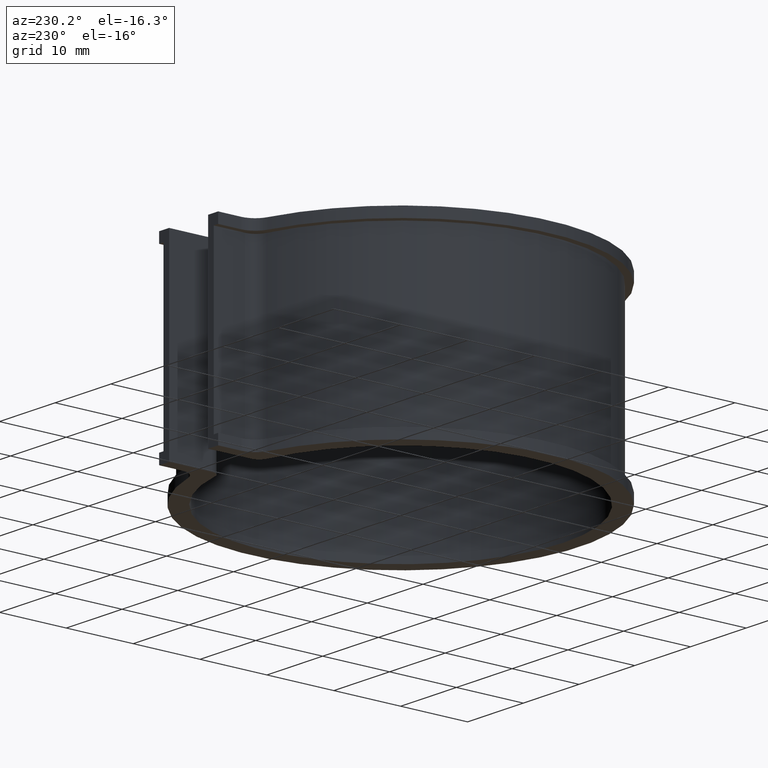
[diagram: clean part render]
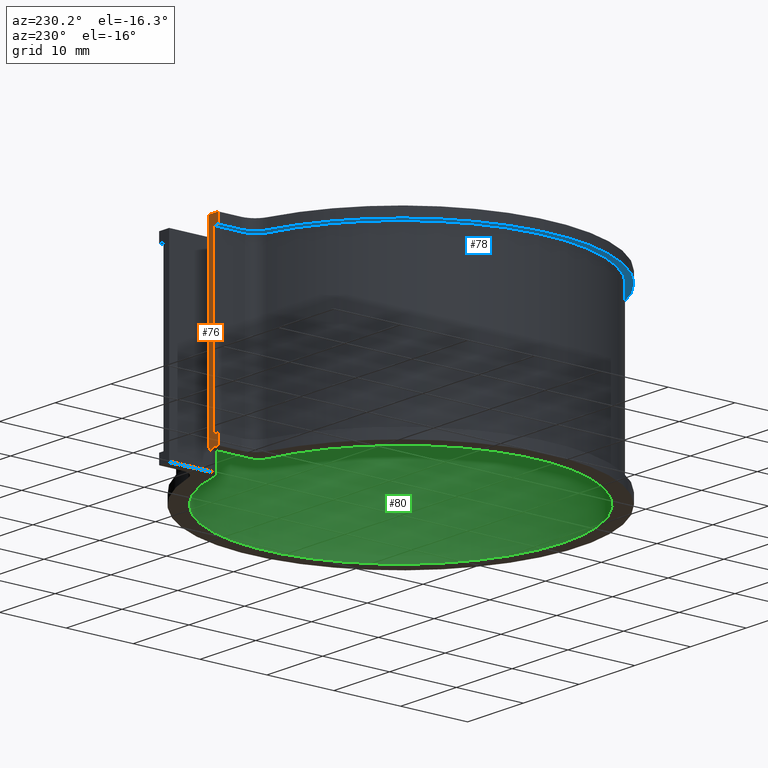
[diagram: same view with three faces highlighted in distinct colors, each labeled with its STEP entity id]
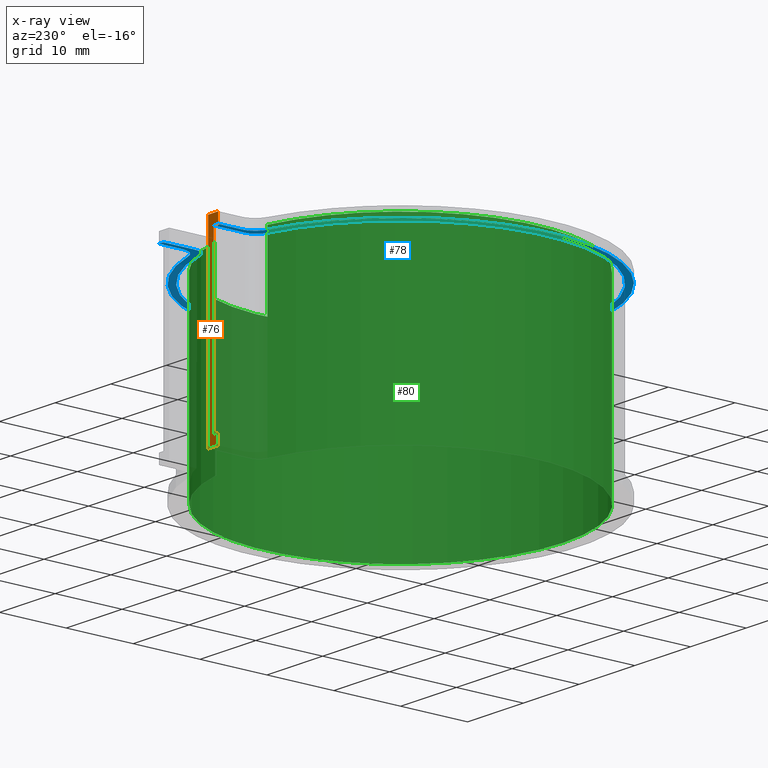
[diagram: x-ray of the same camera — body ghosted, the three highlighted faces saturated]
A machine part, auxiliary view with three faces highlighted in distinct colors.
The next image is the same camera in x-ray (body ghosted, the three faces saturated) — at least one of them is partly hidden behind the body in this view.
Their STEP definitions:

[orange] entity #76 — the highlighted planar face has unit normal (0, 1, 0).
#76 = ADVANCED_FACE( '', ( #104 ), #105, .T. );
#104 = FACE_OUTER_BOUND( '', #156, .T. );
#105 = PLANE( '', #157 );
#156 = EDGE_LOOP( '', ( #213, #214, #215, #216, #217, #218, #219, #220 ) );
#157 = AXIS2_PLACEMENT_3D( '', #221, #222, #223 );
#213 = ORIENTED_EDGE( '', *, *, #432, .T. );
#214 = ORIENTED_EDGE( '', *, *, #433, .T. );
#215 = ORIENTED_EDGE( '', *, *, #434, .F. );
#216 = ORIENTED_EDGE( '', *, *, #435, .F. );
#217 = ORIENTED_EDGE( '', *, *, #436, .F. );
#218 = ORIENTED_EDGE( '', *, *, #437, .T. );
#219 = ORIENTED_EDGE( '', *, *, #438, .T. );
#220 = ORIENTED_EDGE( '', *, *, #439, .F. );
#221 = CARTESIAN_POINT( '', ( -3.50000000000001, 31.7045271556075, -25.0000000000000 ) );
#222 = DIRECTION( '', ( 2.46519032881566E-032, 1.00000000000000, 0.000000000000000 ) );
#223 = DIRECTION( '', ( 1.00000000000000, -2.46519032881566E-032, 0.000000000000000 ) );
#432 = EDGE_CURVE( '', #508, #509, #510, .T. );
#433 = EDGE_CURVE( '', #509, #511, #512, .T. );
#434 = EDGE_CURVE( '', #513, #511, #514, .T. );
#435 = EDGE_CURVE( '', #515, #513, #516, .T. );
#436 = EDGE_CURVE( '', #517, #515, #518, .T. );
#437 = EDGE_CURVE( '', #517, #519, #520, .T. );
#438 = EDGE_CURVE( '', #519, #521, #522, .T. );
#439 = EDGE_CURVE( '', #508, #521, #523, .T. );
#508 = VERTEX_POINT( '', #632 );
#509 = VERTEX_POINT( '', #633 );
#510 = LINE( '', #634, #635 );
#511 = VERTEX_POINT( '', #636 );
#512 = LINE( '', #637, #638 );
#513 = VERTEX_POINT( '', #639 );
#514 = LINE( '', #640, #641 );
#515 = VERTEX_POINT( '', #642 );
#516 = LINE( '', #643, #644 );
#517 = VERTEX_POINT( '', #645 );
#518 = LINE( '', #646, #647 );
#519 = VERTEX_POINT( '', #648 );
#520 = LINE( '', #649, #650 );
#521 = VERTEX_POINT( '', #651 );
#522 = LINE( '', #652, #653 );
#523 = LINE( '', #654, #655 );
#632 = CARTESIAN_POINT( '', ( -4.50000000000001, 31.7045271556075, -25.0000000000000 ) );
#633 = CARTESIAN_POINT( '', ( -4.50000000000002, 31.7045271556075, 0.000000000000000 ) );
#634 = CARTESIAN_POINT( '', ( -4.50000000000002, 31.7045271556075, -25.0000000000000 ) );
#635 = VECTOR( '', #792, 1000.00000000000 );
#636 = CARTESIAN_POINT( '', ( -5.30000000000000, 31.7045271556075, 0.000000000000000 ) );
#637 = CARTESIAN_POINT( '', ( -3.50000000000000, 31.7045271556075, 0.000000000000000 ) );
#638 = VECTOR( '', #793, 1000.00000000000 );
#639 = CARTESIAN_POINT( '', ( -5.30000000000000, 31.7045271556075, 1.50000000000000 ) );
#640 = CARTESIAN_POINT( '', ( -5.30000000000000, 31.7045271556075, 1.50000000000000 ) );
#641 = VECTOR( '', #794, 1000.00000000000 );
#642 = CARTESIAN_POINT( '', ( -3.50000000000000, 31.7045271556075, 1.50000000000000 ) );
#643 = CARTESIAN_POINT( '', ( -3.50000000000000, 31.7045271556075, 1.50000000000000 ) );
#644 = VECTOR( '', #795, 1000.00000000000 );
#645 = CARTESIAN_POINT( '', ( -3.50000000000000, 31.7045271556075, -26.5000000000000 ) );
#646 = CARTESIAN_POINT( '', ( -3.50000000000000, 31.7045271556076, -25.0000000000000 ) );
#647 = VECTOR( '', #796, 1000.00000000000 );
#648 = CARTESIAN_POINT( '', ( -5.30000000000000, 31.7045271556075, -26.5000000000000 ) );
#649 = CARTESIAN_POINT( '', ( -3.50000000000000, 31.7045271556075, -26.5000000000000 ) );
#650 = VECTOR( '', #797, 1000.00000000000 );
#651 = CARTESIAN_POINT( '', ( -5.30000000000000, 31.7045271556075, -25.0000000000000 ) );
#652 = CARTESIAN_POINT( '', ( -5.30000000000000, 31.7045271556075, -26.5000000000000 ) );
#653 = VECTOR( '', #798, 1000.00000000000 );
#654 = CARTESIAN_POINT( '', ( -3.50000000000000, 31.7045271556075, -25.0000000000000 ) );
#655 = VECTOR( '', #799, 1000.00000000000 );
#792 = DIRECTION( '', ( 0.000000000000000, 0.000000000000000, 1.00000000000000 ) );
#793 = DIRECTION( '', ( -1.00000000000000, 0.000000000000000, 0.000000000000000 ) );
#794 = DIRECTION( '', ( 0.000000000000000, 0.000000000000000, -1.00000000000000 ) );
#795 = DIRECTION( '', ( -1.00000000000000, 0.000000000000000, 0.000000000000000 ) );
#796 = DIRECTION( '', ( 0.000000000000000, 0.000000000000000, 1.00000000000000 ) );
#797 = DIRECTION( '', ( -1.00000000000000, 0.000000000000000, 0.000000000000000 ) );
#798 = DIRECTION( '', ( 0.000000000000000, 0.000000000000000, 1.00000000000000 ) );
#799 = DIRECTION( '', ( -1.00000000000000, 0.000000000000000, 0.000000000000000 ) );

[blue] entity #78 — the highlighted planar face has unit normal (0, 0, 1).
#78 = ADVANCED_FACE( '', ( #108 ), #109, .F. );
#108 = FACE_OUTER_BOUND( '', #160, .T. );
#109 = PLANE( '', #161 );
#160 = EDGE_LOOP( '', ( #231, #232, #233, #234, #235, #236, #237, #238, #239, #240, #241, #242 ) );
#161 = AXIS2_PLACEMENT_3D( '', #243, #244, #245 );
#231 = ORIENTED_EDGE( '', *, *, #443, .T. );
#232 = ORIENTED_EDGE( '', *, *, #444, .T. );
#233 = ORIENTED_EDGE( '', *, *, #445, .T. );
#234 = ORIENTED_EDGE( '', *, *, #446, .F. );
#235 = ORIENTED_EDGE( '', *, *, #447, .F. );
#236 = ORIENTED_EDGE( '', *, *, #448, .T. );
#237 = ORIENTED_EDGE( '', *, *, #449, .F. );
#238 = ORIENTED_EDGE( '', *, *, #450, .T. );
#239 = ORIENTED_EDGE( '', *, *, #440, .F. );
#240 = ORIENTED_EDGE( '', *, *, #433, .F. );
#241 = ORIENTED_EDGE( '', *, *, #451, .T. );
#242 = ORIENTED_EDGE( '', *, *, #452, .T. );
#243 = CARTESIAN_POINT( '', ( 0.000000000000000, 0.000000000000000, 0.000000000000000 ) );
#244 = DIRECTION( '', ( 0.000000000000000, 0.000000000000000, 1.00000000000000 ) );
#245 = DIRECTION( '', ( 0.000000000000000, 1.00000000000000, 0.000000000000000 ) );
#433 = EDGE_CURVE( '', #509, #511, #512, .T. );
#440 = EDGE_CURVE( '', #511, #524, #525, .T. );
#443 = EDGE_CURVE( '', #529, #530, #531, .T. );
#444 = EDGE_CURVE( '', #530, #532, #533, .F. );
#445 = EDGE_CURVE( '', #532, #534, #535, .T. );
#446 = EDGE_CURVE( '', #536, #534, #537, .T. );
#447 = EDGE_CURVE( '', #538, #536, #539, .T. );
#448 = EDGE_CURVE( '', #538, #540, #541, .T. );
#449 = EDGE_CURVE( '', #542, #540, #543, .T. );
#450 = EDGE_CURVE( '', #542, #524, #544, .T. );
#451 = EDGE_CURVE( '', #509, #545, #546, .T. );
#452 = EDGE_CURVE( '', #545, #529, #547, .F. );
#509 = VERTEX_POINT( '', #633 );
#511 = VERTEX_POINT( '', #636 );
#512 = LINE( '', #637, #638 );
#524 = VERTEX_POINT( '', #656 );
#525 = LINE( '', #657, #658 );
#529 = VERTEX_POINT( '', #664 );
#530 = VERTEX_POINT( '', #665 );
#531 = CIRCLE( '', #666, 25.8000000000000 );
#532 = VERTEX_POINT( '', #667 );
#533 = CIRCLE( '', #668, 2.00000000000000 );
#534 = VERTEX_POINT( '', #669 );
#535 = LINE( '', #670, #671 );
#536 = VERTEX_POINT( '', #672 );
#537 = LINE( '', #673, #674 );
#538 = VERTEX_POINT( '', #675 );
#539 = LINE( '', #676, #677 );
#540 = VERTEX_POINT( '', #678 );
#541 = CIRCLE( '', #679, 2.50000000000000 );
#542 = VERTEX_POINT( '', #680 );
#543 = CIRCLE( '', #681, 26.8000000000000 );
#544 = CIRCLE( '', #682, 2.50000000000000 );
#545 = VERTEX_POINT( '', #683 );
#546 = LINE( '', #684, #685 );
#547 = CIRCLE( '', #686, 2.00000000000000 );
#633 = CARTESIAN_POINT( '', ( -4.50000000000002, 31.7045271556075, 0.000000000000000 ) );
#636 = CARTESIAN_POINT( '', ( -5.30000000000000, 31.7045271556075, 0.000000000000000 ) );
#637 = CARTESIAN_POINT( '', ( -3.50000000000000, 31.7045271556075, 0.000000000000000 ) );
#638 = VECTOR( '', #793, 1000.00000000000 );
#656 = CARTESIAN_POINT( '', ( -5.30000000000000, 28.2426981713858, 0.000000000000000 ) );
#657 = CARTESIAN_POINT( '', ( -5.30000000000000, 31.7045271556075, 0.000000000000000 ) );
#658 = VECTOR( '', #800, 1000.00000000000 );
#664 = CARTESIAN_POINT( '', ( -6.03237410071942, 25.0848652120949, 0.000000000000000 ) );
#665 = CARTESIAN_POINT( '', ( 6.03237410071943, 25.0848652120949, 0.000000000000000 ) );
#666 = AXIS2_PLACEMENT_3D( '', #803, #804, #805 );
#667 = CARTESIAN_POINT( '', ( 4.50000000000000, 27.0294284068310, 0.000000000000000 ) );
#668 = AXIS2_PLACEMENT_3D( '', #806, #807, #808 );
#669 = CARTESIAN_POINT( '', ( 4.50000000000001, 31.7045271556075, 0.000000000000000 ) );
#670 = CARTESIAN_POINT( '', ( 4.50000000000000, 25.4045271556075, 0.000000000000000 ) );
#671 = VECTOR( '', #809, 1000.00000000000 );
#672 = CARTESIAN_POINT( '', ( 5.30000000000000, 31.7045271556076, 0.000000000000000 ) );
#673 = CARTESIAN_POINT( '', ( 5.30000000000003, 31.7045271556075, 0.000000000000000 ) );
#674 = VECTOR( '', #810, 1000.00000000000 );
#675 = CARTESIAN_POINT( '', ( 5.30000000000000, 28.2426981713858, 0.000000000000000 ) );
#676 = CARTESIAN_POINT( '', ( 5.30000000000000, 26.2707061191739, 0.000000000000000 ) );
#677 = VECTOR( '', #811, 1000.00000000000 );
#678 = CARTESIAN_POINT( '', ( 7.13447098976109, 25.8329116379911, 0.000000000000000 ) );
#679 = AXIS2_PLACEMENT_3D( '', #812, #813, #814 );
#680 = CARTESIAN_POINT( '', ( -7.13447098976109, 25.8329116379911, 0.000000000000000 ) );
#681 = AXIS2_PLACEMENT_3D( '', #815, #816, #817 );
#682 = AXIS2_PLACEMENT_3D( '', #818, #819, #820 );
#683 = CARTESIAN_POINT( '', ( -4.50000000000000, 27.0294284068310, 0.000000000000000 ) );
#684 = CARTESIAN_POINT( '', ( -4.50000000000000, 31.7045271556076, 0.000000000000000 ) );
#685 = VECTOR( '', #821, 1000.00000000000 );
#686 = AXIS2_PLACEMENT_3D( '', #822, #823, #824 );
#793 = DIRECTION( '', ( -1.00000000000000, 0.000000000000000, 0.000000000000000 ) );
#800 = DIRECTION( '', ( -6.12303176911189E-017, -1.00000000000000, 0.000000000000000 ) );
#803 = CARTESIAN_POINT( '', ( 2.60208521396521E-015, 1.38777878078145E-014, 0.000000000000000 ) );
#804 = DIRECTION( '', ( 0.000000000000000, 0.000000000000000, 1.00000000000000 ) );
#805 = DIRECTION( '', ( 1.00000000000000, -8.32667268468867E-017, 0.000000000000000 ) );
#806 = CARTESIAN_POINT( '', ( 6.50000000000001, 27.0294284068310, 0.000000000000000 ) );
#807 = DIRECTION( '', ( 0.000000000000000, 0.000000000000000, 1.00000000000000 ) );
#808 = DIRECTION( '', ( 1.00000000000000, 0.000000000000000, 0.000000000000000 ) );
#809 = DIRECTION( '', ( -2.77555756156289E-017, 1.00000000000000, 0.000000000000000 ) );
#810 = DIRECTION( '', ( -1.00000000000000, 0.000000000000000, 0.000000000000000 ) );
#811 = DIRECTION( '', ( 6.12303176911189E-017, 1.00000000000000, 0.000000000000000 ) );
#812 = CARTESIAN_POINT( '', ( 7.80000000000000, 28.2426981713858, 0.000000000000000 ) );
#813 = DIRECTION( '', ( 0.000000000000000, 0.000000000000000, 1.00000000000000 ) );
#814 = DIRECTION( '', ( 1.00000000000000, 0.000000000000000, 0.000000000000000 ) );
#815 = CARTESIAN_POINT( '', ( 0.000000000000000, 0.000000000000000, 0.000000000000000 ) );
#816 = DIRECTION( '', ( 0.000000000000000, 0.000000000000000, 1.00000000000000 ) );
#817 = DIRECTION( '', ( 1.00000000000000, 0.000000000000000, 0.000000000000000 ) );
#818 = CARTESIAN_POINT( '', ( -7.80000000000000, 28.2426981713858, 0.000000000000000 ) );
#819 = DIRECTION( '', ( 0.000000000000000, 0.000000000000000, 1.00000000000000 ) );
#820 = DIRECTION( '', ( 1.00000000000000, 0.000000000000000, 0.000000000000000 ) );
#821 = DIRECTION( '', ( 2.77555756156289E-017, -1.00000000000000, 0.000000000000000 ) );
#822 = CARTESIAN_POINT( '', ( -6.50000000000000, 27.0294284068310, 0.000000000000000 ) );
#823 = DIRECTION( '', ( 0.000000000000000, 0.000000000000000, 1.00000000000000 ) );
#824 = DIRECTION( '', ( 1.00000000000000, 0.000000000000000, 0.000000000000000 ) );

[green] entity #80 — the highlighted cylindrical surface (partial cylindrical patch) has radius 24.3 mm, axis along (0, 0, -1).
#80 = ADVANCED_FACE( '', ( #112 ), #113, .F. );
#112 = FACE_OUTER_BOUND( '', #164, .T. );
#113 = CYLINDRICAL_SURFACE( '', #165, 24.3000000000000 );
#164 = EDGE_LOOP( '', ( #261, #262, #263, #264 ) );
#165 = AXIS2_PLACEMENT_3D( '', #265, #266, #267 );
#261 = ORIENTED_EDGE( '', *, *, #455, .T. );
#262 = ORIENTED_EDGE( '', *, *, #463, .T. );
#263 = ORIENTED_EDGE( '', *, *, #464, .F. );
#264 = ORIENTED_EDGE( '', *, *, #465, .T. );
#265 = CARTESIAN_POINT( '', ( 2.60208521396521E-015, 1.38777878078145E-014, -25.0000000000000 ) );
#266 = DIRECTION( '', ( 0.000000000000000, 0.000000000000000, -1.00000000000000 ) );
#267 = DIRECTION( '', ( -0.144032921810699, -0.989572896473359, 0.000000000000000 ) );
#455 = EDGE_CURVE( '', #552, #550, #553, .T. );
#463 = EDGE_CURVE( '', #550, #566, #567, .T. );
#464 = EDGE_CURVE( '', #568, #566, #569, .T. );
#465 = EDGE_CURVE( '', #568, #552, #570, .F. );
#550 = VERTEX_POINT( '', #690 );
#552 = VERTEX_POINT( '', #692 );
#553 = CIRCLE( '', #693, 24.3000000000000 );
#566 = VERTEX_POINT( '', #709 );
#567 = LINE( '', #710, #711 );
#568 = VERTEX_POINT( '', #712 );
#569 = CIRCLE( '', #713, 24.3000000000000 );
#570 = LINE( '', #714, #715 );
#690 = CARTESIAN_POINT( '', ( -4.70930232558139, 23.8393051829594, -26.5000000000000 ) );
#692 = CARTESIAN_POINT( '', ( 4.70930232558140, 23.8393051829594, -26.5000000000000 ) );
#693 = AXIS2_PLACEMENT_3D( '', #829, #830, #831 );
#709 = CARTESIAN_POINT( '', ( -4.70930232558139, 23.8393051829594, 1.50000000000000 ) );
#710 = CARTESIAN_POINT( '', ( -4.70930232558139, 23.8393051829594, -25.0000000000000 ) );
#711 = VECTOR( '', #847, 1000.00000000000 );
#712 = CARTESIAN_POINT( '', ( 4.70930232558140, 23.8393051829594, 1.50000000000000 ) );
#713 = AXIS2_PLACEMENT_3D( '', #848, #849, #850 );
#714 = CARTESIAN_POINT( '', ( 4.70930232558140, 23.8393051829594, -25.0000000000000 ) );
#715 = VECTOR( '', #851, 1000.00000000000 );
#829 = CARTESIAN_POINT( '', ( 0.000000000000000, 0.000000000000000, -26.5000000000000 ) );
#830 = DIRECTION( '', ( 0.000000000000000, 0.000000000000000, -1.00000000000000 ) );
#831 = DIRECTION( '', ( 1.00000000000000, 0.000000000000000, 0.000000000000000 ) );
#847 = DIRECTION( '', ( 0.000000000000000, 0.000000000000000, 1.00000000000000 ) );
#848 = CARTESIAN_POINT( '', ( 0.000000000000000, 0.000000000000000, 1.50000000000000 ) );
#849 = DIRECTION( '', ( 0.000000000000000, 0.000000000000000, -1.00000000000000 ) );
#850 = DIRECTION( '', ( 1.00000000000000, 0.000000000000000, 0.000000000000000 ) );
#851 = DIRECTION( '', ( 0.000000000000000, 0.000000000000000, 1.00000000000000 ) );